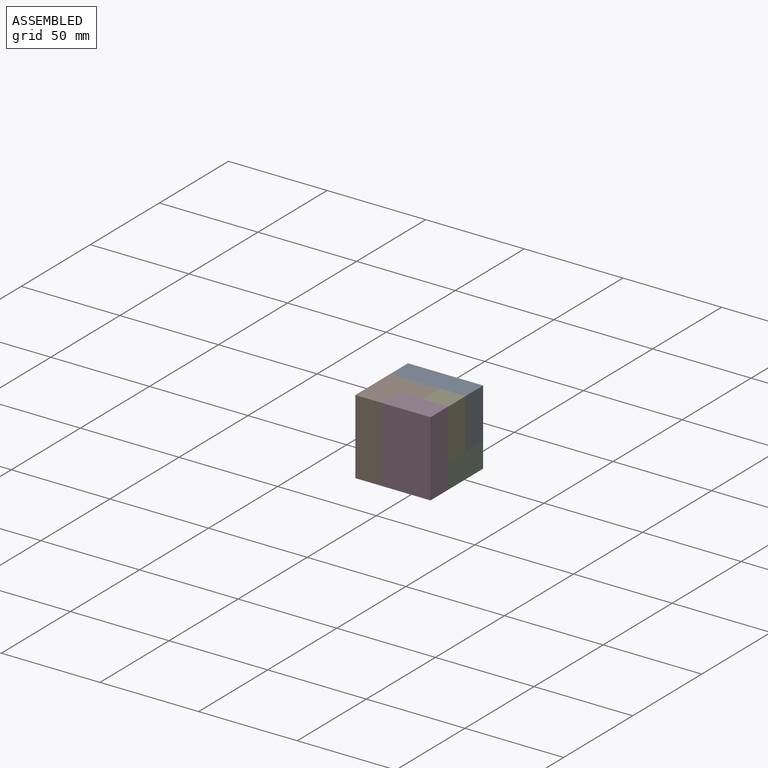
[diagram: assembled view]
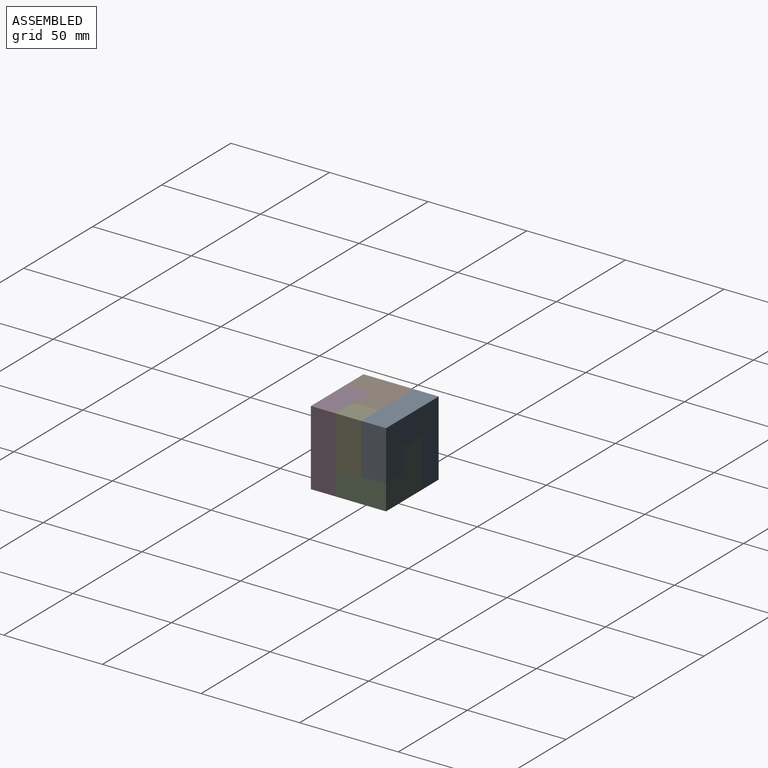
[diagram: assembled view, second angle]
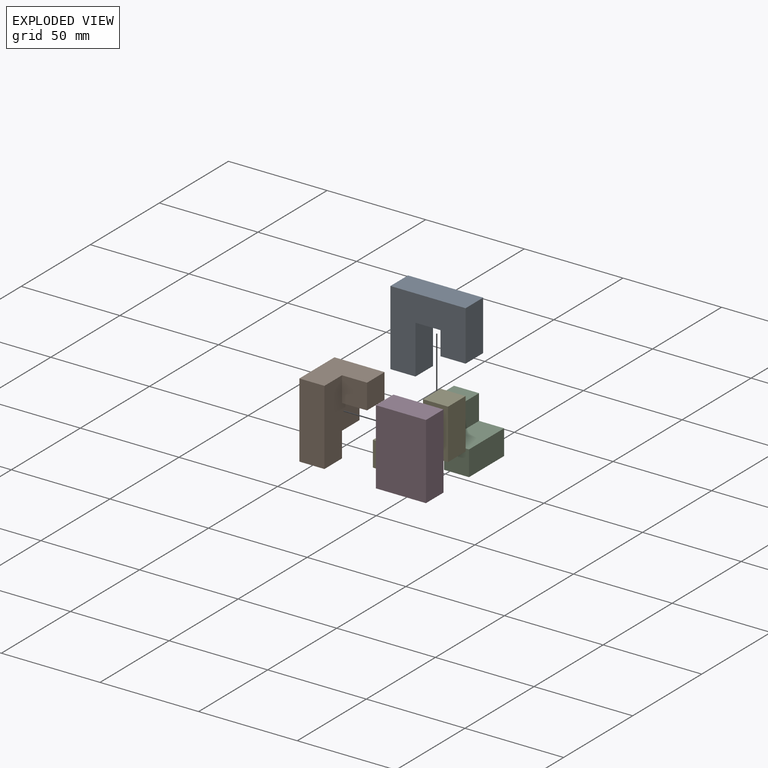
[diagram: exploded view]
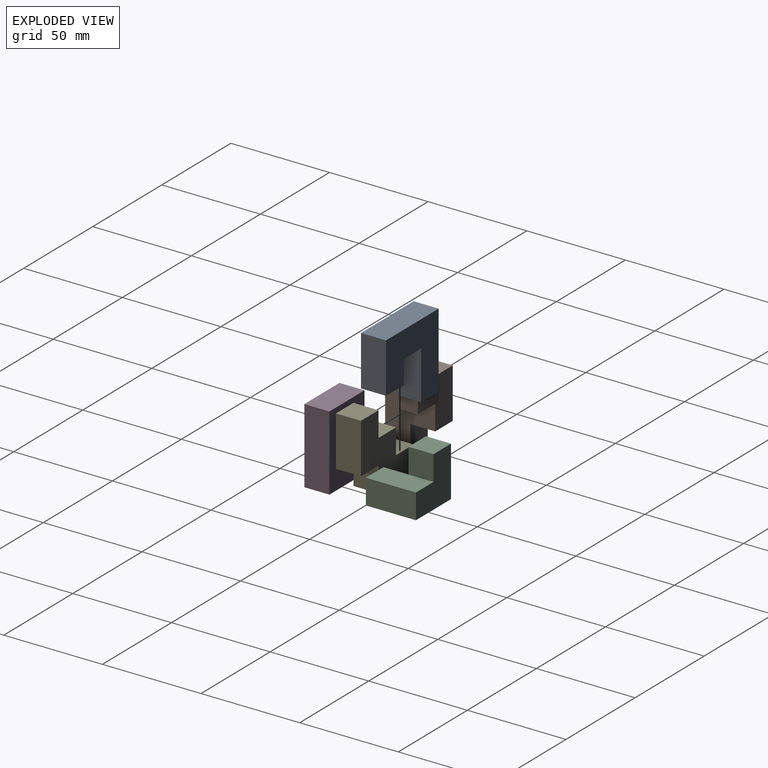
[diagram: exploded view, second angle]
ASSEMBLY  parts=5 mates=15
PART A: 10 faces, bbox 38.1x12.7x38.1 mm
  f0: plane 12.7x12.7mm, normal (0,0,-1), area 161.3mm2, adj f1,f7,f8,f9
  f1: plane 24.66x12.7mm, normal (1,0,0), area 313.2mm2, adj f0,f2,f8,f9
  f2: plane 12.7x12.7mm, normal (0,0,-1), area 161.3mm2, adj f1,f3,f8,f9
  f3: plane 12.7x11.96mm, normal (-1,0,0), area 151.9mm2, adj f2,f4,f8,f9
  f4: plane 12.7x12.7mm, normal (0,0,-1), area 161.3mm2, adj f3,f5,f8,f9
  f5: plane 25.4x12.7mm, normal (1,0,0), area 322.6mm2, adj f4,f6,f8,f9
  f6: plane 38.1x12.7mm, normal (0,0,1), area 483.9mm2, adj f5,f7,f8,f9
  f7: plane 38.1x12.7mm, normal (-1,0,0), area 483.9mm2, adj f0,f6,f8,f9
  f8: plane 38.1x38.1mm, normal (0,-1,0), area 977.1mm2, adj f0,f1,f2,f3,f4,f5,f6,f7
  f9: plane 38.1x38.1mm, normal (0,1,0), area 977.1mm2, adj f0,f1,f2,f3,f4,f5,f6,f7
PART B: 11 faces, bbox 38.1x25.4x25.4 mm
  f0: plane 38.1x25.4mm, normal (0,1,0), area 645.2mm2, adj f1,f2,f3,f4,f5,f6,f8,f9
  f1: plane 25.4x25.4mm, normal (0,0,-1), area 483.9mm2, adj f0,f2,f6,f7,f9,f10
  f2: plane 12.7x12.7mm, normal (1,0,0), area 161.3mm2, adj f0,f1,f3,f7
  f3: plane 12.7x12.7mm, normal (0,0,-1), area 161.3mm2, adj f0,f2,f4,f7
  f4: plane 12.7x12.7mm, normal (1,0,0), area 161.3mm2, adj f0,f3,f5,f7
  f5: plane 38.1x12.7mm, normal (0,0,1), area 483.9mm2, adj f0,f4,f6,f7
  f6: plane 25.4x25.4mm, normal (-1,0,0), area 483.9mm2, adj f0,f1,f5,f7,f8,f10
  f7: plane 38.1x25.4mm, normal (0,-1,0), area 806.5mm2, adj f1,f2,f3,f4,f5,f6
  f8: plane 12.7x12.7mm, normal (0,0,1), area 161.3mm2, adj f0,f6,f9,f10
  f9: plane 12.7x12.7mm, normal (1,0,0), area 161.3mm2, adj f0,f1,f8,f10
  f10: plane 12.7x12.7mm, normal (0,1,0), area 161.3mm2, adj f1,f6,f8,f9
PART C: 10 faces, bbox 25.4x25.4x25.4 mm
  f0: plane 25.4x25.4mm, normal (0,0,-1), area 483.9mm2, adj f1,f5,f6,f7,f8,f9
  f1: plane 25.4x12.7mm, normal (1,0,0), area 322.6mm2, adj f0,f2,f7,f9
  f2: plane 25.4x12.7mm, normal (0,0,1), area 322.6mm2, adj f1,f3,f7,f8,f9
  f3: plane 12.7x12.7mm, normal (1,0,0), area 161.3mm2, adj f2,f4,f6,f7
  f4: plane 12.7x12.7mm, normal (0,0,1), area 161.3mm2, adj f3,f5,f6,f7
  f5: plane 25.4x12.7mm, normal (-1,0,0), area 322.6mm2, adj f0,f4,f6,f7
  f6: plane 25.4x12.7mm, normal (0,-1,0), area 322.6mm2, adj f0,f3,f4,f5,f8
  f7: plane 25.4x25.4mm, normal (0,1,0), area 483.9mm2, adj f0,f1,f2,f3,f4,f5
  f8: plane 12.7x12.7mm, normal (-1,0,0), area 161.3mm2, adj f0,f2,f6,f9
  f9: plane 12.7x12.7mm, normal (0,-1,0), area 161.3mm2, adj f0,f1,f2,f8
PART D: 6 faces, bbox 25.4x12.7x38.1 mm
  f0: plane 25.4x12.7mm, normal (0,0,-1), area 322.6mm2, adj f1,f3,f4,f5
  f1: plane 38.1x12.7mm, normal (1,0,0), area 483.9mm2, adj f0,f2,f4,f5
  f2: plane 25.4x12.7mm, normal (0,0,1), area 322.6mm2, adj f1,f3,f4,f5
  f3: plane 38.1x12.7mm, normal (-1,0,0), area 483.9mm2, adj f0,f2,f4,f5
  f4: plane 38.1x25.4mm, normal (0,-1,0), area 967.7mm2, adj f0,f1,f2,f3
  f5: plane 38.1x25.4mm, normal (0,1,0), area 967.7mm2, adj f0,f1,f2,f3
PART E: 12 faces, bbox 38.1x12.7x38.1 mm
  f0: plane 25.4x12.7mm, normal (0,0,-1), area 322.6mm2, adj f1,f9,f10,f11
  f1: plane 12.7x12.7mm, normal (1,0,0), area 161.3mm2, adj f0,f2,f10,f11
  f2: plane 12.7x12.7mm, normal (0,0,-1), area 161.3mm2, adj f1,f3,f10,f11
  f3: plane 25.4x12.7mm, normal (1,0,0), area 322.6mm2, adj f2,f4,f10,f11
  f4: plane 12.7x12.7mm, normal (0,0,1), area 161.3mm2, adj f3,f5,f10,f11
  f5: plane 12.7x12.7mm, normal (-1,0,0), area 161.3mm2, adj f4,f6,f10,f11
  f6: plane 12.7x12.7mm, normal (0,0,1), area 161.3mm2, adj f5,f7,f10,f11
  f7: plane 12.7x12.7mm, normal (-1,0,0), area 161.3mm2, adj f6,f8,f10,f11
  f8: plane 12.7x12.7mm, normal (0,0,1), area 161.3mm2, adj f7,f9,f10,f11
  f9: plane 12.7x12.7mm, normal (-1,0,0), area 161.3mm2, adj f0,f8,f10,f11
  f10: plane 38.1x38.1mm, normal (0,-1,0), area 806.4mm2, adj f0,f1,f2,f3,f4,f5,f6,f7
  f11: plane 38.1x38.1mm, normal (0,1,0), area 806.4mm2, adj f0,f1,f2,f3,f4,f5,f6,f7
PLACE A t=(-26.99,11.53,4.01)mm
PLACE B rot(axis=(0.58,0.58,-0.58),120deg) t=(-14.29,-1.17,42.11)mm
PLACE C t=(-14.29,11.53,4.01)mm
PLACE D rot(axis=(0,1,0),180deg) t=(11.11,-13.87,42.11)mm
PLACE E rot(axis=(-0.71,0,0.71),180deg) t=(11.11,-13.87,42.11)mm
MATE planar C.f7 <-> A.f9  axis (0,1,0) through (-3.71,11.53,14.6)mm
MATE planar E.f8 <-> B.f10  axis (-1,0,0) through (-1.59,-7.52,35.76)mm
MATE planar C.f2 <-> A.f4  axis (0,0,1) through (4.76,-1.17,16.71)mm
MATE planar E.f3 <-> A.f0  axis (0,0,-1) through (-14.29,-7.52,4.01)mm
MATE parallel E.f11 <-> B.f8  axis (0,-1,0) through (-5.4,-13.87,20.52)mm
MATE planar B.f9 <-> E.f7  axis (0,0,-1) through (-7.94,-7.52,29.41)mm
MATE planar D.f5 <-> E.f11  axis (0,1,0) through (-1.59,-13.87,23.06)mm
MATE planar B.f3 <-> E.f11  axis (0,1,0) through (-20.64,-13.87,10.36)mm
MATE planar D.f5 <-> E.f11  axis (0,1,0) through (11.11,-13.87,42.11)mm
MATE planar E.f4 <-> A.f7  axis (-1,0,0) through (-26.99,-7.52,10.36)mm
MATE planar E.f10 <-> A.f8  axis (0,1,0) through (-5.4,-1.17,20.52)mm
MATE planar B.f10 <-> E.f8  axis (1,0,0) through (-1.59,-7.52,35.76)mm
MATE parallel B.f1 <-> A.f8  axis (0,-1,0) through (-26.99,-1.17,42.11)mm
MATE planar C.f1 <-> A.f5  axis (1,0,0) through (11.11,-1.17,10.36)mm
MATE planar D.f1 <-> B.f0  axis (-1,0,0) through (-14.29,-20.22,23.06)mm
